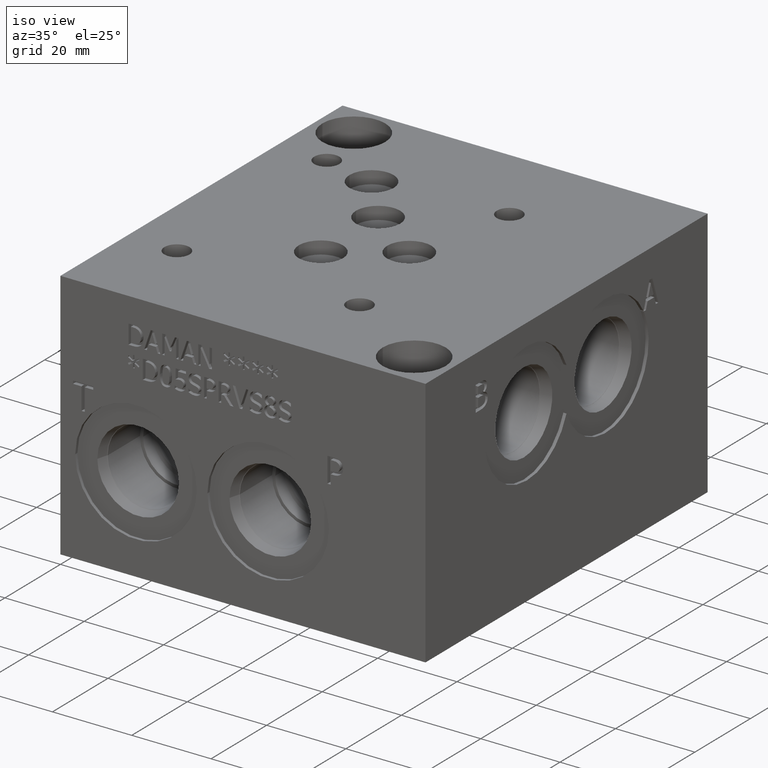
[diagram: clean part render]
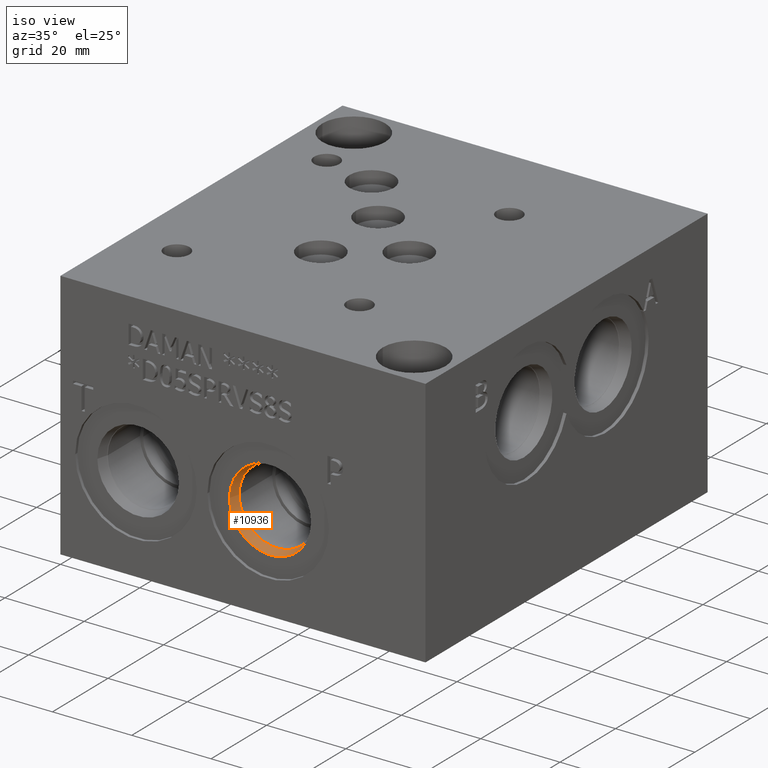
[diagram: same view with one face highlighted and labeled with its STEP entity id]
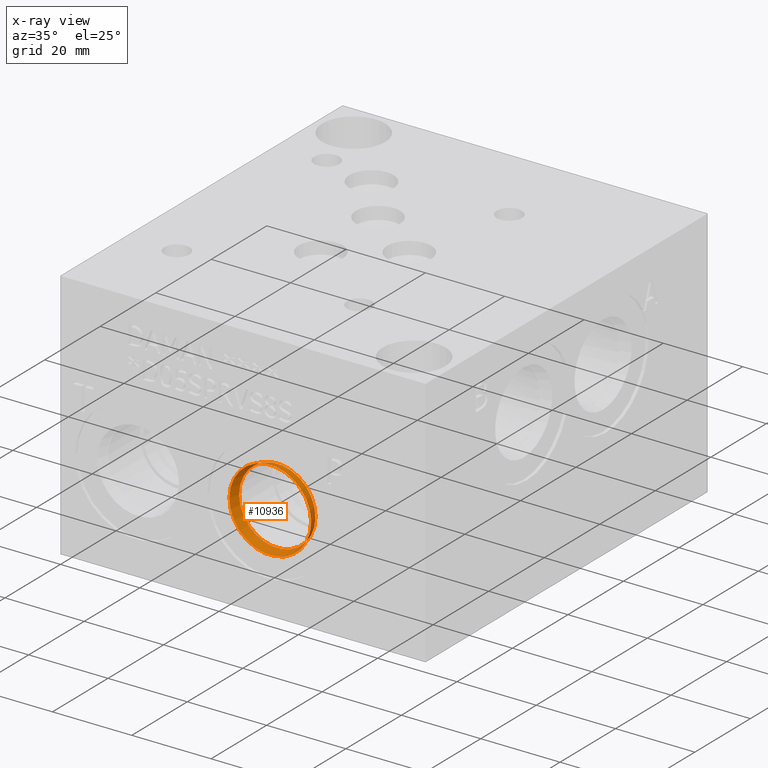
[diagram: x-ray of the same camera — body ghosted, the highlighted face saturated]
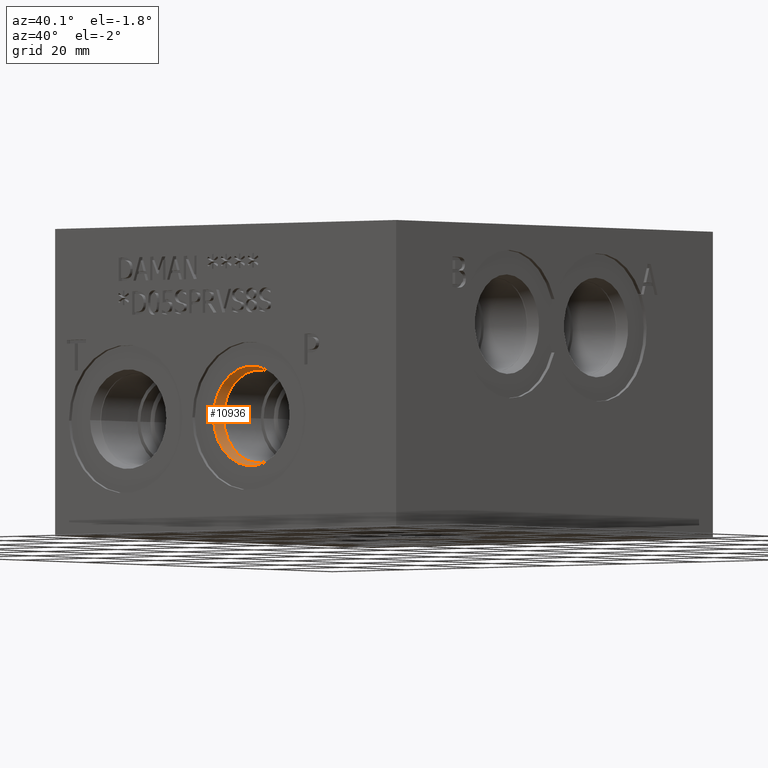
[diagram: same view with one face highlighted and labeled with its STEP entity id]
A machine part, iso view. The second image highlights one B-rep face of the part: STEP entity #10936.
The next image is the same camera in x-ray: the body ghosted, the highlighted face saturated — about 0% of this face is hidden behind the body in this view.
A second angle (auxiliary view) of the same face is appended — the face is thin or edge-on in the first view.
In plain terms, the highlighted conical surface has half-angle 15 deg.
Its self-contained STEP definition (entity closure, byte-faithful):
#1539=FACE_OUTER_BOUND('',#2156,.T.);
#2156=EDGE_LOOP('',(#10055,#10056,#10057,#10058,#10059,#10060));
#2668=CIRCLE('',#11457,10.2997);
#2669=CIRCLE('',#11458,10.2997);
#2670=CIRCLE('',#11460,9.62660000000001);
#2671=CIRCLE('',#11461,9.62660000000001);
#3723=LINE('',#18761,#4723);
#4723=VECTOR('',#13468,9.96315);
#5696=VERTEX_POINT('',#18755);
#5697=VERTEX_POINT('',#18756);
#5698=VERTEX_POINT('',#18760);
#5699=VERTEX_POINT('',#18762);
#7185=EDGE_CURVE('',#5696,#5697,#2668,.T.);
#7186=EDGE_CURVE('',#5697,#5696,#2669,.T.);
#7187=EDGE_CURVE('',#5697,#5698,#3723,.T.);
#7188=EDGE_CURVE('',#5698,#5699,#2670,.T.);
#7189=EDGE_CURVE('',#5699,#5698,#2671,.T.);
#10055=ORIENTED_EDGE('',*,*,#7185,.F.);
#10056=ORIENTED_EDGE('',*,*,#7186,.F.);
#10057=ORIENTED_EDGE('',*,*,#7187,.T.);
#10058=ORIENTED_EDGE('',*,*,#7188,.T.);
#10059=ORIENTED_EDGE('',*,*,#7189,.T.);
#10060=ORIENTED_EDGE('',*,*,#7187,.F.);
#10420=CONICAL_SURFACE('',#11459,9.96315,0.261799387657294);
#10936=ADVANCED_FACE('',(#1539),#10420,.F.);
#11457=AXIS2_PLACEMENT_3D('',#18757,#13462,#13463);
#11458=AXIS2_PLACEMENT_3D('',#18758,#13464,#13465);
#11459=AXIS2_PLACEMENT_3D('',#18759,#13466,#13467);
#11460=AXIS2_PLACEMENT_3D('',#18763,#13469,#13470);
#11461=AXIS2_PLACEMENT_3D('',#18764,#13471,#13472);
#13462=DIRECTION('center_axis',(0.,1.,0.));
#13463=DIRECTION('ref_axis',(1.,0.,0.));
#13464=DIRECTION('center_axis',(0.,1.,0.));
#13465=DIRECTION('ref_axis',(1.,0.,0.));
#13466=DIRECTION('center_axis',(0.,-1.,0.));
#13467=DIRECTION('ref_axis',(1.,0.,0.));
#13468=DIRECTION('',(0.258819044965499,0.965925826325783,-3.16961914975373E-17));
#13469=DIRECTION('center_axis',(0.,1.,0.));
#13470=DIRECTION('ref_axis',(1.,0.,0.));
#13471=DIRECTION('center_axis',(0.,1.,0.));
#13472=DIRECTION('ref_axis',(1.,0.,0.));
#18755=CARTESIAN_POINT('',(62.6745,0.7874,23.8252));
#18756=CARTESIAN_POINT('',(42.0751,0.787400000000001,23.8252));
#18757=CARTESIAN_POINT('Origin',(52.3748,0.7874,23.8252));
#18758=CARTESIAN_POINT('Origin',(52.3748,0.7874,23.8252));
#18759=CARTESIAN_POINT('Origin',(52.3748,2.0434217,23.8252));
#18760=CARTESIAN_POINT('',(42.7482,3.2994434,23.8252));
#18761=CARTESIAN_POINT('',(42.41165,2.0434217,23.8252));
#18762=CARTESIAN_POINT('',(62.0014,3.2994434,23.8252));
#18763=CARTESIAN_POINT('Origin',(52.3748,3.2994434,23.8252));
#18764=CARTESIAN_POINT('Origin',(52.3748,3.2994434,23.8252));